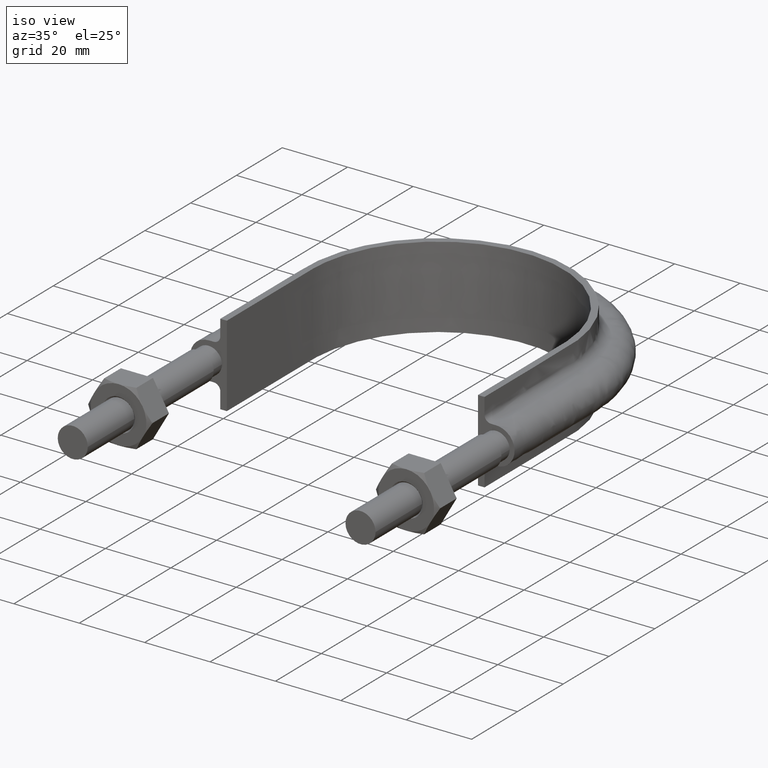
[diagram: clean part render]
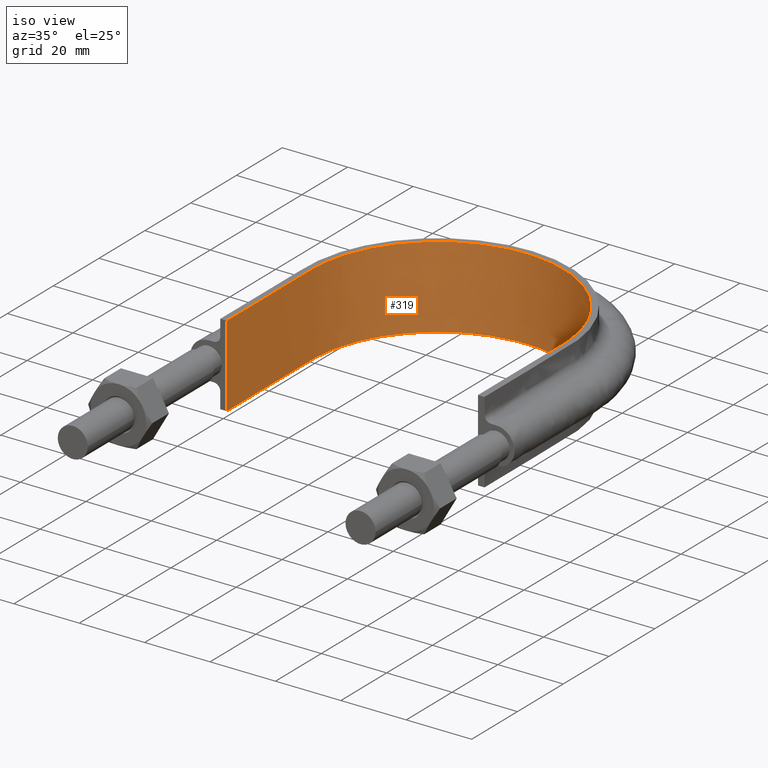
[diagram: same view with one face highlighted and labeled with its STEP entity id]
A machine part, iso view. The second image highlights one B-rep face of the part: STEP entity #319.
In plain terms, the highlighted face is a SurfaceOfExtrusion surface.
Its self-contained STEP definition (entity closure, byte-faithful):
#319 = ADVANCED_FACE( '', ( #404 ), #405, .T. );
#404 = FACE_OUTER_BOUND( '', #1104, .T. );
#405 = SURFACE_OF_LINEAR_EXTRUSION( '', #1105, #1106 );
#1104 = EDGE_LOOP( '', ( #1594, #1595, #1596, #1597 ) );
#1105 = B_SPLINE_CURVE_WITH_KNOTS( '', 3, ( #1598, #1599, #1600, #1601, #1602, #1603, #1604, #1605, #1606, #1607, #1608, #1609, #1610, #1611, #1612, #1613, #1614 ), .UNSPECIFIED., .F., .F., ( 4, 3, 1, 1, 1, 1, 1, 1, 1, 3, 4 ), ( -7.93017456359102, -7.00000000000000, -6.50000000000000, -6.00000000000000, -5.00000000000000, -4.00000000000000, -3.00000000000000, -2.00000000000000, -1.50000000000000, -1.00000000000000, -0.0698254364089773 ), .UNSPECIFIED. );
#1106 = VECTOR( '', #1615, 1000.00000000000 );
#1594 = ORIENTED_EDGE( '', *, *, #2111, .T. );
#1595 = ORIENTED_EDGE( '', *, *, #2124, .T. );
#1596 = ORIENTED_EDGE( '', *, *, #2121, .F. );
#1597 = ORIENTED_EDGE( '', *, *, #2119, .T. );
#1598 = CARTESIAN_POINT( '', ( 38.4000000000000, 59.3000000000000, 12.5000100000909 ) );
#1599 = CARTESIAN_POINT( '', ( 38.4000000000000, 71.7333333333333, 12.5000100000909 ) );
#1600 = CARTESIAN_POINT( '', ( 38.4000000000000, 84.1666666666667, 12.5000100000909 ) );
#1601 = CARTESIAN_POINT( '', ( 38.4000000000000, 96.6000000000000, 12.5000100000909 ) );
#1602 = CARTESIAN_POINT( '', ( 38.4000000000000, 99.9378960382427, 12.5000100000909 ) );
#1603 = CARTESIAN_POINT( '', ( 37.5004323173849, 106.653498701236, 12.5000100000909 ) );
#1604 = CARTESIAN_POINT( '', ( 32.3590360537293, 119.146842750795, 12.5000100000909 ) );
#1605 = CARTESIAN_POINT( '', ( 20.0971465093487, 131.410921736661, 12.5000100000909 ) );
#1606 = CARTESIAN_POINT( '', ( 3.06297339866991E-014, 136.794539131670, 12.5000100000909 ) );
#1607 = CARTESIAN_POINT( '', ( -20.0971465093486, 131.410921736661, 12.5000100000909 ) );
#1608 = CARTESIAN_POINT( '', ( -32.3590360537293, 119.146842750795, 12.5000100000909 ) );
#1609 = CARTESIAN_POINT( '', ( -37.5004323173848, 106.653498701236, 12.5000100000909 ) );
#1610 = CARTESIAN_POINT( '', ( -38.4000000000000, 99.9378960382428, 12.5000100000909 ) );
#1611 = CARTESIAN_POINT( '', ( -38.4000000000000, 96.6000000000000, 12.5000100000909 ) );
#1612 = CARTESIAN_POINT( '', ( -38.4000000000000, 84.1666666666667, 12.5000100000909 ) );
#1613 = CARTESIAN_POINT( '', ( -38.4000000000000, 71.7333333333333, 12.5000100000909 ) );
#1614 = CARTESIAN_POINT( '', ( -38.4000000000000, 59.3000000000000, 12.5000100000909 ) );
#1615 = DIRECTION( '', ( 0.000000000000000, 0.000000000000000, -1.00000000000000 ) );
#2111 = EDGE_CURVE( '', #2263, #2264, #2265, .T. );
#2119 = EDGE_CURVE( '', #2278, #2263, #2279, .T. );
#2121 = EDGE_CURVE( '', #2278, #2281, #2282, .T. );
#2124 = EDGE_CURVE( '', #2264, #2281, #2286, .F. );
#2263 = VERTEX_POINT( '', #2513 );
#2264 = VERTEX_POINT( '', #2514 );
#2265 = LINE( '', #2515, #2516 );
#2278 = VERTEX_POINT( '', #2632 );
#2279 = B_SPLINE_CURVE_WITH_KNOTS( '', 3, ( #2633, #2634, #2635, #2636, #2637, #2638, #2639, #2640, #2641, #2642, #2643, #2644, #2645, #2646, #2647, #2648, #2649, #2650, #2651, #2652, #2653, #2654, #2655, #2656, #2657, #2658, #2659, #2660, #2661, #2662, #2663, #2664, #2665, #2666, #2667, #2668, #2669, #2670, #2671, #2672, #2673, #2674, #2675, #2676, #2677, #2678, #2679, #2680, #2681, #2682, #2683, #2684, #2685, #2686, #2687, #2688, #2689, #2690, #2691, #2692, #2693, #2694, #2695, #2696, #2697, #2698, #2699, #2700, #2701, #2702, #2703, #2704, #2705, #2706, #2707, #2708, #2709, #2710, #2711, #2712, #2713, #2714, #2715, #2716, #2717, #2718 ), .UNSPECIFIED., .F., .F., ( 4, 1, 2, 2, 2, 2, 2, 2, 2, 2, 2, 2, 2, 2, 2, 2, 2, 2, 2, 2, 2, 2, 2, 2, 2, 2, 2, 2, 2, 2, 2, 2, 2, 2, 2, 2, 2, 2, 2, 2, 2, 2, 1, 4 ), ( 6.93889390390723E-018, 0.0243379018108107, 0.0365068527162160, 0.0380279715793916, 0.0395490904425673, 0.0425913281689186, 0.0456335658952699, 0.0486758036216212, 0.0547602790743238, 0.0578025168006751, 0.0593236356638507, 0.0608447545270264, 0.0669292299797289, 0.0699714677060801, 0.0714925865692557, 0.0730137054324314, 0.0790981808851338, 0.0851826563378363, 0.0867037752010119, 0.0882248940641875, 0.0912671317905387, 0.0973516072432411, 0.0988727261064167, 0.100393844969592, 0.103436082695944, 0.109520558148646, 0.112562795874997, 0.115605033601348, 0.121689509054051, 0.123210627917226, 0.124731746780402, 0.127773984506753, 0.133858459959456, 0.136900697685807, 0.139942935412158, 0.146027410864861, 0.149069648591212, 0.150590767454388, 0.152111886317563, 0.155154124043915, 0.156675242907090, 0.158196361770266, 0.170365312675671, 0.194703214486480 ), .UNSPECIFIED. );
#2281 = VERTEX_POINT( '', #2721 );
#2282 = LINE( '', #2722, #2723 );
#2286 = B_SPLINE_CURVE_WITH_KNOTS( '', 3, ( #2737, #2738, #2739, #2740, #2741, #2742, #2743, #2744, #2745, #2746, #2747, #2748, #2749, #2750, #2751, #2752, #2753 ), .UNSPECIFIED., .F., .F., ( 4, 3, 1, 1, 1, 1, 1, 1, 1, 3, 4 ), ( -7.93017456359102, -7.00000000000000, -6.50000000000000, -6.00000000000000, -5.00000000000000, -4.00000000000000, -3.00000000000000, -2.00000000000000, -1.50000000000000, -1.00000000000000, -0.0698254364089773 ), .UNSPECIFIED. );
#2513 = CARTESIAN_POINT( '', ( -38.4000000000000, 59.3000000000000, 12.5000000000000 ) );
#2514 = CARTESIAN_POINT( '', ( -38.4000000000000, 59.3000000000000, -12.5000000000000 ) );
#2515 = CARTESIAN_POINT( '', ( -38.4000000000000, 59.3000000000000, 12.5000100000909 ) );
#2516 = VECTOR( '', #3178, 1000.00000000000 );
#2632 = CARTESIAN_POINT( '', ( 38.4000000000000, 59.3000000000000, 12.5000000000000 ) );
#2633 = CARTESIAN_POINT( '', ( 38.4000000000000, 59.3000000000000, 12.5000000000000 ) );
#2634 = CARTESIAN_POINT( '', ( 38.4000000000000, 67.4126339369367, 12.5000000000000 ) );
#2635 = CARTESIAN_POINT( '', ( 38.4000000000000, 79.5815848423417, 12.5000000000000 ) );
#2636 = CARTESIAN_POINT( '', ( 38.4000000000000, 91.7505357477467, 12.5000000000000 ) );
#2637 = CARTESIAN_POINT( '', ( 38.4000000000000, 96.3138923372736, 12.5000000000000 ) );
#2638 = CARTESIAN_POINT( '', ( 38.4027743076037, 96.8211194098902, 12.5000000000000 ) );
#2639 = CARTESIAN_POINT( '', ( 38.3830167791574, 97.8338636956790, 12.5000000000000 ) );
#2640 = CARTESIAN_POINT( '', ( 38.3628782069929, 98.3395426144399, 12.5000000000000 ) );
#2641 = CARTESIAN_POINT( '', ( 38.2722040230530, 99.8545348977656, 12.5000000000000 ) );
#2642 = CARTESIAN_POINT( '', ( 38.1714849409613, 100.861808856702, 12.5000000000000 ) );
#2643 = CARTESIAN_POINT( '', ( 37.8904277266655, 102.870977156620, 12.5000000000000 ) );
#2644 = CARTESIAN_POINT( '', ( 37.7100929165158, 103.872871722062, 12.5000000000000 ) );
#2645 = CARTESIAN_POINT( '', ( 37.2682777085644, 105.871178091473, 12.5000000000000 ) );
#2646 = CARTESIAN_POINT( '', ( 37.0058649207665, 106.869209598004, 12.5000000000000 ) );
#2647 = CARTESIAN_POINT( '', ( 36.1099085355124, 109.800428328994, 12.5000000000000 ) );
#2648 = CARTESIAN_POINT( '', ( 35.3652812283339, 111.689277860510, 12.5000000000000 ) );
#2649 = CARTESIAN_POINT( '', ( 34.0270721353676, 114.424482046523, 12.5000000000000 ) );
#2650 = CARTESIAN_POINT( '', ( 33.5438803306412, 115.319763573667, 12.5000000000000 ) );
#2651 = CARTESIAN_POINT( '', ( 32.7614856080269, 116.637153374160, 12.5000000000000 ) );
#2652 = CARTESIAN_POINT( '', ( 32.4911122498970, 117.072039439345, 12.5000000000000 ) );
#2653 = CARTESIAN_POINT( '', ( 31.9310694523163, 117.933259191099, 12.5000000000000 ) );
#2654 = CARTESIAN_POINT( '', ( 31.6416548483074, 118.359099832881, 12.5000000000000 ) );
#2655 = CARTESIAN_POINT( '', ( 30.1598500561493, 120.447972709778, 12.5000000000000 ) );
#2656 = CARTESIAN_POINT( '', ( 28.8544690281685, 122.006253780205, 12.5000000000000 ) );
#2657 = CARTESIAN_POINT( '', ( 26.7242269234556, 124.181725572989, 12.5000000000000 ) );
#2658 = CARTESIAN_POINT( '', ( 25.9852601970117, 124.879711605143, 12.5000000000000 ) );
#2659 = CARTESIAN_POINT( '', ( 24.8327554866621, 125.885251295440, 12.5000000000000 ) );
#2660 = CARTESIAN_POINT( '', ( 24.4412331318477, 126.213513644747, 12.5000000000000 ) );
#2661 = CARTESIAN_POINT( '', ( 23.6432116170531, 126.855950622700, 12.5000000000000 ) );
#2662 = CARTESIAN_POINT( '', ( 23.2357844532914, 127.170799679600, 12.5000000000000 ) );
#2663 = CARTESIAN_POINT( '', ( 21.1728995967701, 128.699717522121, 12.5000000000000 ) );
#2664 = CARTESIAN_POINT( '', ( 19.4461214786924, 129.775116348712, 12.5000000000000 ) );
#2665 = CARTESIAN_POINT( '', ( 15.8424012951628, 131.635807157406, 12.5000000000000 ) );
#2666 = CARTESIAN_POINT( '', ( 13.9663663217125, 132.422851581443, 12.5000000000000 ) );
#2667 = CARTESIAN_POINT( '', ( 11.5271708169513, 133.224762065559, 12.5000000000000 ) );
#2668 = CARTESIAN_POINT( '', ( 11.0351210878859, 133.375746188077, 12.5000000000000 ) );
#2669 = CARTESIAN_POINT( '', ( 10.0502423640909, 133.656786422983, 12.5000000000000 ) );
#2670 = CARTESIAN_POINT( '', ( 9.55637016529635, 133.787194835959, 12.5000000000000 ) );
#2671 = CARTESIAN_POINT( '', ( 8.07051418322873, 134.148502213832, 12.5000000000000 ) );
#2672 = CARTESIAN_POINT( '', ( 7.07429985999588, 134.349545743025, 12.5000000000000 ) );
#2673 = CARTESIAN_POINT( '', ( 4.06886690428292, 134.834187354575, 12.5000000000000 ) );
#2674 = CARTESIAN_POINT( '', ( 2.04300780873486, 135.000351662540, 12.5000000000000 ) );
#2675 = CARTESIAN_POINT( '', ( -0.518810472446091, 134.999911391897, 12.5000000000000 ) );
#2676 = CARTESIAN_POINT( '', ( -1.03384934041121, 134.989267949139, 12.5000000000000 ) );
#2677 = CARTESIAN_POINT( '', ( -2.05999227101022, 134.947123645522, 12.5000000000000 ) );
#2678 = CARTESIAN_POINT( '', ( -2.57100025916361, 134.915690794062, 12.5000000000000 ) );
#2679 = CARTESIAN_POINT( '', ( -4.09798525337116, 134.791070625937, 12.5000000000000 ) );
#2680 = CARTESIAN_POINT( '', ( -5.10793619044561, 134.667626472700, 12.5000000000000 ) );
#2681 = CARTESIAN_POINT( '', ( -8.11438462156133, 134.179780837089, 12.5000000000000 ) );
#2682 = CARTESIAN_POINT( '', ( -10.0876738344829, 133.698850790019, 12.5000000000000 ) );
#2683 = CARTESIAN_POINT( '', ( -13.0003199951630, 132.740024822744, 12.5000000000000 ) );
#2684 = CARTESIAN_POINT( '', ( -13.9672170977487, 132.378727202231, 12.5000000000000 ) );
#2685 = CARTESIAN_POINT( '', ( -15.8546719802245, 131.585984907772, 12.5000000000000 ) );
#2686 = CARTESIAN_POINT( '', ( -16.7774313079128, 131.154197465975, 12.5000000000000 ) );
#2687 = CARTESIAN_POINT( '', ( -19.4833402127082, 129.753490344414, 12.5000000000000 ) );
#2688 = CARTESIAN_POINT( '', ( -21.2036319794209, 128.678400373100, 12.5000000000000 ) );
#2689 = CARTESIAN_POINT( '', ( -23.2504143165322, 127.159581599005, 12.5000000000000 ) );
#2690 = CARTESIAN_POINT( '', ( -23.6545765017689, 126.847044416500, 12.5000000000000 ) );
#2691 = CARTESIAN_POINT( '', ( -24.4524162332018, 126.204260920726, 12.5000000000000 ) );
#2692 = CARTESIAN_POINT( '', ( -24.8469576925089, 125.873240647292, 12.5000000000000 ) );
#2693 = CARTESIAN_POINT( '', ( -26.0068899055368, 124.860053871450, 12.5000000000000 ) );
#2694 = CARTESIAN_POINT( '', ( -26.7486892538445, 124.158088969384, 12.5000000000000 ) );
#2695 = CARTESIAN_POINT( '', ( -28.8823748109422, 121.974991317251, 12.5000000000000 ) );
#2696 = CARTESIAN_POINT( '', ( -30.1833131714200, 120.417299289572, 12.5000000000000 ) );
#2697 = CARTESIAN_POINT( '', ( -31.9490860628640, 117.924495268019, 12.5000000000000 ) );
#2698 = CARTESIAN_POINT( '', ( -32.5065492449488, 117.067357440084, 12.5000000000000 ) );
#2699 = CARTESIAN_POINT( '', ( -33.5561706257855, 115.298108495221, 12.5000000000000 ) );
#2700 = CARTESIAN_POINT( '', ( -34.0419906193419, 114.396127879279, 12.5000000000000 ) );
#2701 = CARTESIAN_POINT( '', ( -35.3824842141312, 111.649725427965, 12.5000000000000 ) );
#2702 = CARTESIAN_POINT( '', ( -36.1236281599900, 109.761104672605, 12.5000000000000 ) );
#2703 = CARTESIAN_POINT( '', ( -37.0127103209049, 106.843968621002, 12.5000000000000 ) );
#2704 = CARTESIAN_POINT( '', ( -37.2717329928219, 105.857467876968, 12.5000000000000 ) );
#2705 = CARTESIAN_POINT( '', ( -37.6030425852181, 104.356073245167, 12.5000000000000 ) );
#2706 = CARTESIAN_POINT( '', ( -37.7041051856697, 103.850877289074, 12.5000000000000 ) );
#2707 = CARTESIAN_POINT( '', ( -37.8853786337735, 102.841026729264, 12.5000000000000 ) );
#2708 = CARTESIAN_POINT( '', ( -37.9657364586178, 102.335935616760, 12.5000000000000 ) );
#2709 = CARTESIAN_POINT( '', ( -38.1763323138402, 100.820170574568, 12.5000000000000 ) );
#2710 = CARTESIAN_POINT( '', ( -38.2761686057870, 99.8090061644105, 12.5000000000000 ) );
#2711 = CARTESIAN_POINT( '', ( -38.3651025185759, 98.2912783131886, 12.5000000000000 ) );
#2712 = CARTESIAN_POINT( '', ( -38.3845912942189, 97.7852051818457, 12.5000000000000 ) );
#2713 = CARTESIAN_POINT( '', ( -38.4030301939459, 96.7727275628628, 12.5000000000000 ) );
#2714 = CARTESIAN_POINT( '', ( -38.4000000000000, 96.2662911261513, 12.5000000000000 ) );
#2715 = CARTESIAN_POINT( '', ( -38.4000000000000, 91.7088031790915, 12.5000000000000 ) );
#2716 = CARTESIAN_POINT( '', ( -38.4000000000000, 79.5555019869322, 12.5000000000000 ) );
#2717 = CARTESIAN_POINT( '', ( -38.4000000000000, 67.4022007947729, 12.5000000000000 ) );
#2718 = CARTESIAN_POINT( '', ( -38.4000000000000, 59.3000000000000, 12.5000000000000 ) );
#2721 = CARTESIAN_POINT( '', ( 38.4000000000000, 59.3000000000000, -12.5000000000000 ) );
#2722 = CARTESIAN_POINT( '', ( 38.4000000000000, 59.3000000000000, 12.5000100000909 ) );
#2723 = VECTOR( '', #3182, 1000.00000000000 );
#2737 = CARTESIAN_POINT( '', ( 38.4000000000000, 59.3000000000000, -12.5000000000000 ) );
#2738 = CARTESIAN_POINT( '', ( 38.4000000000000, 71.7333333333333, -12.5000000000000 ) );
#2739 = CARTESIAN_POINT( '', ( 38.4000000000000, 84.1666666666667, -12.5000000000000 ) );
#2740 = CARTESIAN_POINT( '', ( 38.4000000000000, 96.6000000000000, -12.5000000000000 ) );
#2741 = CARTESIAN_POINT( '', ( 38.4000000000000, 99.9378960382427, -12.5000000000000 ) );
#2742 = CARTESIAN_POINT( '', ( 37.5004323173849, 106.653498701236, -12.5000000000000 ) );
#2743 = CARTESIAN_POINT( '', ( 32.3590360537293, 119.146842750795, -12.5000000000000 ) );
#2744 = CARTESIAN_POINT( '', ( 20.0971465093487, 131.410921736661, -12.5000000000000 ) );
#2745 = CARTESIAN_POINT( '', ( 3.06297339866991E-014, 136.794539131670, -12.5000000000000 ) );
#2746 = CARTESIAN_POINT( '', ( -20.0971465093486, 131.410921736661, -12.5000000000000 ) );
#2747 = CARTESIAN_POINT( '', ( -32.3590360537293, 119.146842750795, -12.5000000000000 ) );
#2748 = CARTESIAN_POINT( '', ( -37.5004323173848, 106.653498701236, -12.5000000000000 ) );
#2749 = CARTESIAN_POINT( '', ( -38.4000000000000, 99.9378960382428, -12.5000000000000 ) );
#2750 = CARTESIAN_POINT( '', ( -38.4000000000000, 96.6000000000000, -12.5000000000000 ) );
#2751 = CARTESIAN_POINT( '', ( -38.4000000000000, 84.1666666666667, -12.5000000000000 ) );
#2752 = CARTESIAN_POINT( '', ( -38.4000000000000, 71.7333333333333, -12.5000000000000 ) );
#2753 = CARTESIAN_POINT( '', ( -38.4000000000000, 59.3000000000000, -12.5000000000000 ) );
#3178 = DIRECTION( '', ( 0.000000000000000, 0.000000000000000, -1.00000000000000 ) );
#3182 = DIRECTION( '', ( 0.000000000000000, 0.000000000000000, -1.00000000000000 ) );